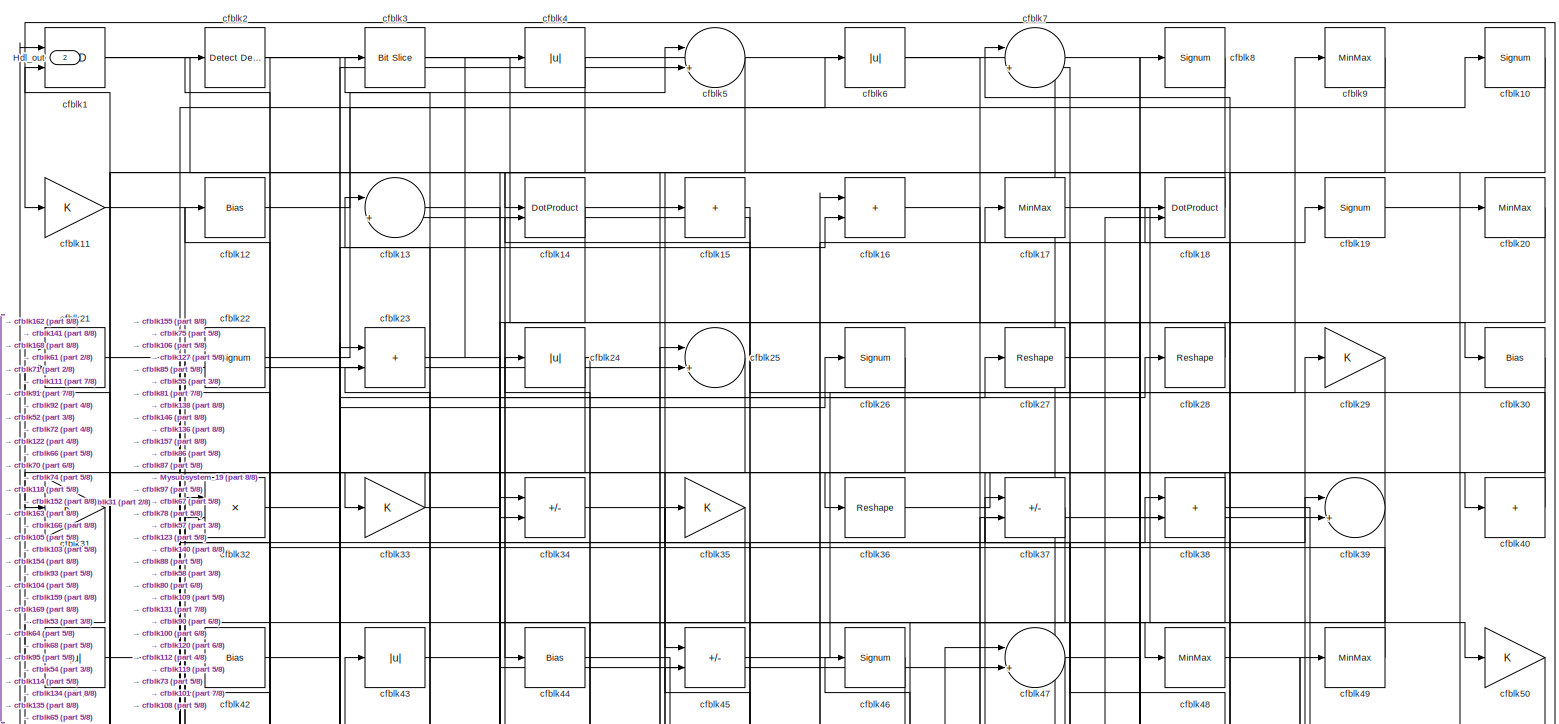
[diagram: root canvas - part 1/8, full width, top band]
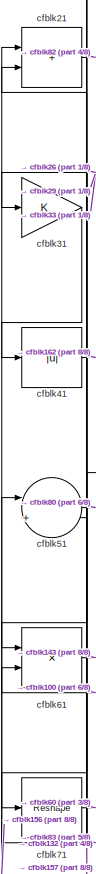
[diagram: root canvas - part 2/8, top left region]
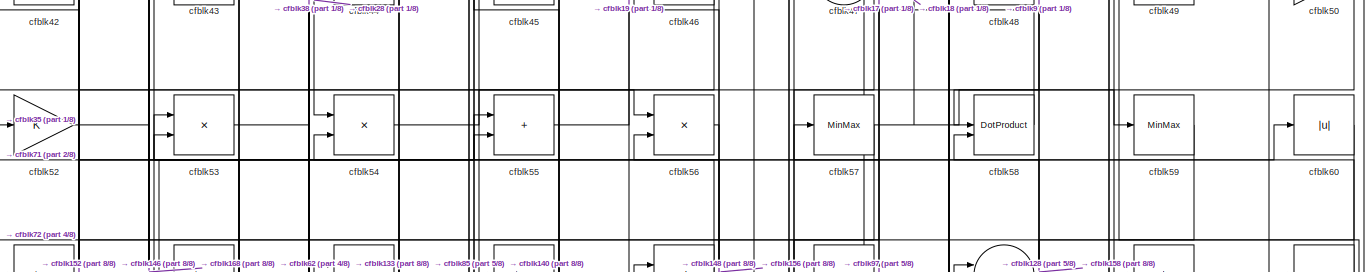
[diagram: root canvas - part 3/8, full width, top band]
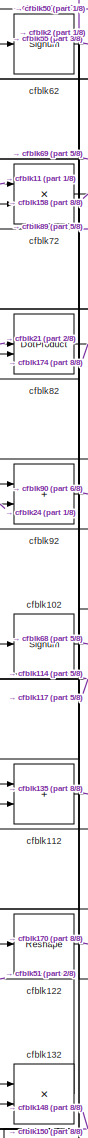
[diagram: root canvas - part 4/8, middle left region]
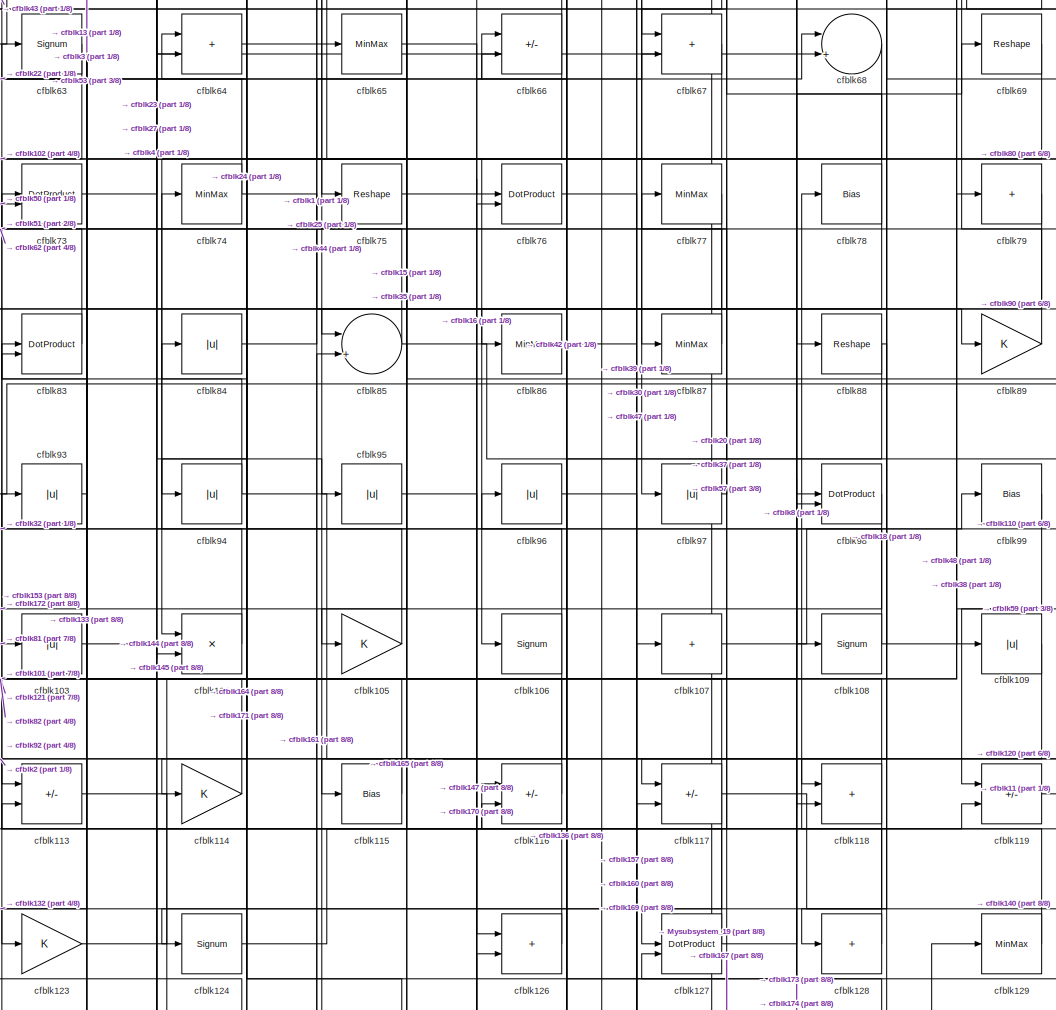
[diagram: root canvas - part 5/8, central region]
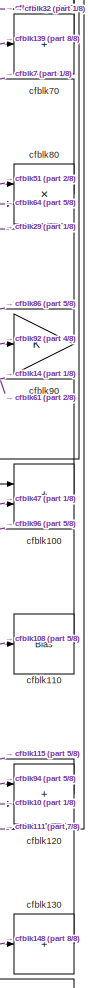
[diagram: root canvas - part 6/8, middle right region]
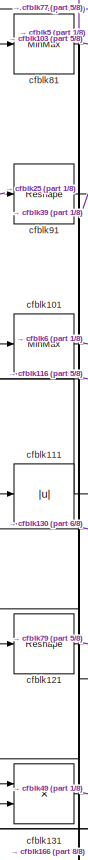
[diagram: root canvas - part 7/8, middle left region]
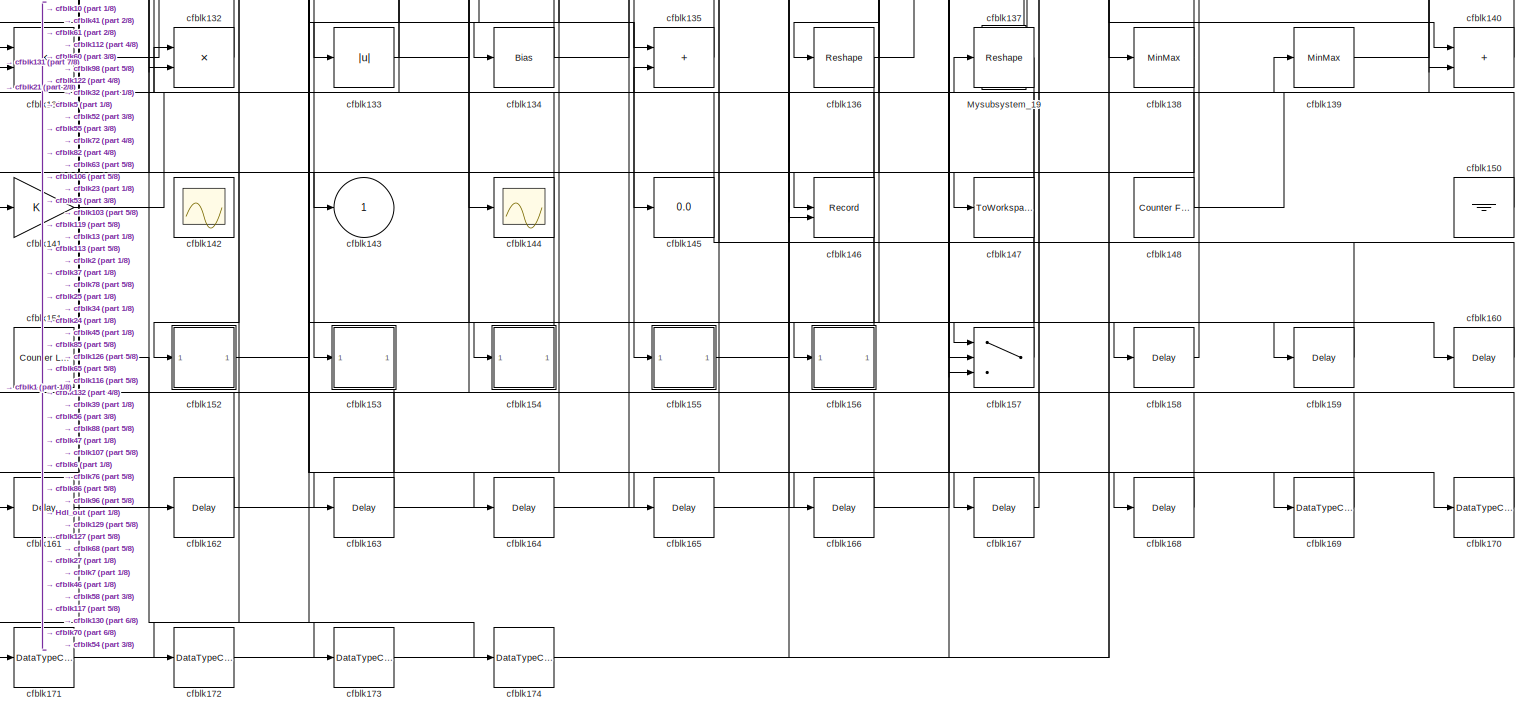
[diagram: root canvas - part 8/8, full width, bottom band]
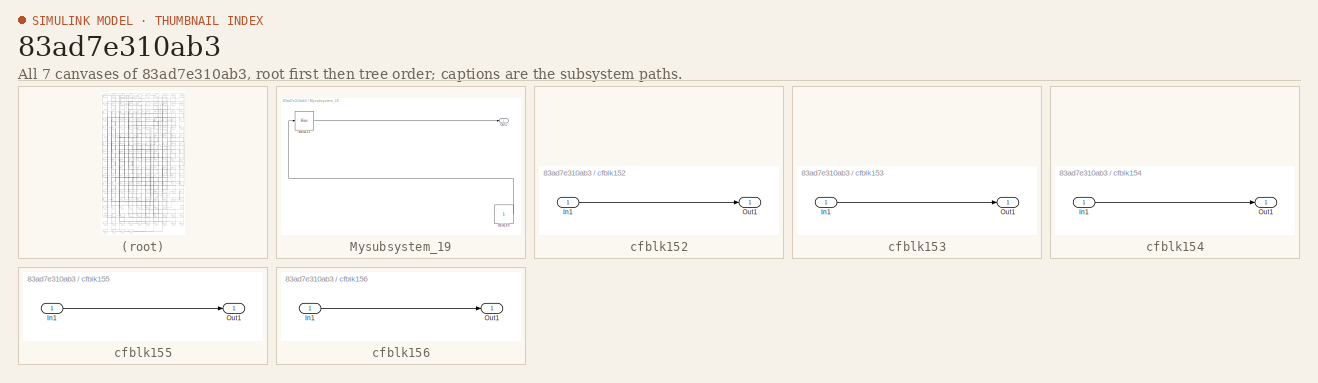
[diagram: thumbnail index - all 7 canvases of the model, root first then tree order]
MODEL slx_83ad7e310ab3
KIND model
CONFIG AbsTol = auto
CONFIG EnableMultiTasking = off
CONFIG FixedStep = auto
CONFIG MaxStep = auto
CONFIG MinStep = auto
CONFIG RelTol = 1e-3
CONFIG SampleTimeConstraint = Unconstrained
CONFIG SolverName = VariableStepAuto
CONFIG StartTime = 0.0
CONFIG StopTime = 10.0
BLOCK [Outport] Hdl_out
  OutDataTypeStr = uint8
  Port = 2
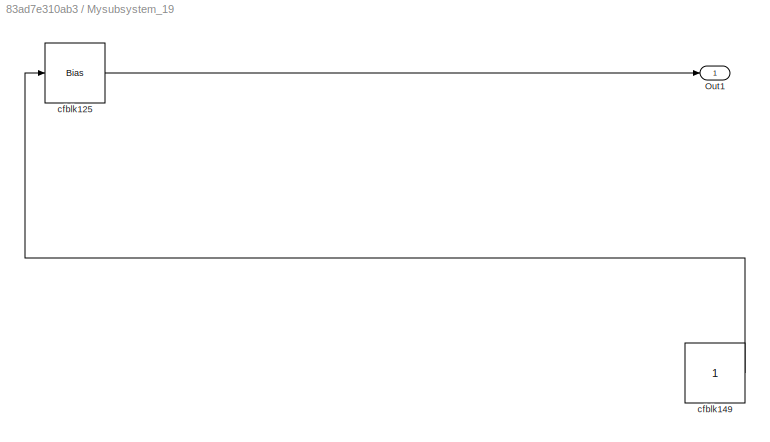
BLOCK [SubSystem] Mysubsystem_19
  RTWFcnName = Mysubsystem_19
  RTWFcnNameOpts = User specified
  RTWFileNameOpts = Use function name
  RTWSystemCode = Reusable function
  TreatAsAtomicUnit = on
BLOCK [Outport] Mysubsystem_19/Out1
BLOCK [Bias] Mysubsystem_19/cfblk125
  Bias = 0.0
  SaturateOnIntegerOverflow = off
BLOCK [Constant] Mysubsystem_19/cfblk149
  SampleTime = -1
BLOCK [Logic] cfblk1
  AllPortsSameDT = off
  OutDataTypeStr = boolean
BLOCK [Signum] cfblk10
BLOCK [Sum] cfblk100
  IconShape = rectangular
  OutDataTypeStr = uint8
BLOCK [MinMax] cfblk101
  OutDataTypeStr = uint8
BLOCK [Signum] cfblk102
BLOCK [Abs] cfblk103
  OutDataTypeStr = uint8
  SaturateOnIntegerOverflow = off
BLOCK [Product] cfblk104
  Inputs = */
  OutDataTypeStr = uint8
  RndMeth = Zero
  SaturateOnIntegerOverflow = on
BLOCK [Gain] cfblk105
  OutDataTypeStr = uint8
BLOCK [Signum] cfblk106
BLOCK [Sum] cfblk107
  IconShape = rectangular
  Inputs = +
  OutDataTypeStr = uint8
BLOCK [Signum] cfblk108
BLOCK [Abs] cfblk109
  OutDataTypeStr = uint8
  SaturateOnIntegerOverflow = off
BLOCK [Gain] cfblk11
  OutDataTypeStr = uint8
BLOCK [Bias] cfblk110
  Bias = 0.0
  SaturateOnIntegerOverflow = off
BLOCK [Abs] cfblk111
  OutDataTypeStr = uint8
  SaturateOnIntegerOverflow = off
BLOCK [Sum] cfblk112
  IconShape = rectangular
  OutDataTypeStr = uint8
BLOCK [Sum] cfblk113
  IconShape = rectangular
  Inputs = +-
  OutDataTypeStr = uint8
BLOCK [Gain] cfblk114
  OutDataTypeStr = uint8
BLOCK [Bias] cfblk115
  Bias = 0.0
  SaturateOnIntegerOverflow = off
BLOCK [Sum] cfblk116
  IconShape = rectangular
  Inputs = +-
  OutDataTypeStr = uint8
BLOCK [Sum] cfblk117
  IconShape = rectangular
  Inputs = +-
  OutDataTypeStr = uint8
BLOCK [Sum] cfblk118
  IconShape = rectangular
  OutDataTypeStr = uint8
BLOCK [Sum] cfblk119
  IconShape = rectangular
  Inputs = +-
  OutDataTypeStr = uint8
BLOCK [Bias] cfblk12
  Bias = 0.0
  SaturateOnIntegerOverflow = off
BLOCK [Sum] cfblk120
  IconShape = rectangular
  OutDataTypeStr = uint8
BLOCK [Reshape] cfblk121
BLOCK [Reshape] cfblk122
BLOCK [Gain] cfblk123
  OutDataTypeStr = uint8
BLOCK [Signum] cfblk124
BLOCK [Sum] cfblk126
  IconShape = rectangular
  OutDataTypeStr = uint8
BLOCK [DotProduct] cfblk127
  OutDataTypeStr = uint8
BLOCK [Sum] cfblk128
  IconShape = rectangular
  Inputs = +
  OutDataTypeStr = uint8
BLOCK [MinMax] cfblk129
  OutDataTypeStr = uint8
BLOCK [Sum] cfblk13
  Inputs = |++
  OutDataTypeStr = uint8
BLOCK [Sum] cfblk130
  IconShape = rectangular
  Inputs = +
  OutDataTypeStr = uint8
BLOCK [Product] cfblk131
  Inputs = */
  OutDataTypeStr = uint8
  RndMeth = Zero
  SaturateOnIntegerOverflow = on
BLOCK [Product] cfblk132
  Inputs = */
  OutDataTypeStr = uint8
  RndMeth = Zero
  SaturateOnIntegerOverflow = on
BLOCK [Abs] cfblk133
  OutDataTypeStr = uint8
  SaturateOnIntegerOverflow = off
BLOCK [Bias] cfblk134
  Bias = 0.0
  SaturateOnIntegerOverflow = off
BLOCK [Sum] cfblk135
  IconShape = rectangular
  OutDataTypeStr = uint8
BLOCK [Reshape] cfblk136
BLOCK [Reshape] cfblk137
BLOCK [MinMax] cfblk138
  OutDataTypeStr = uint8
BLOCK [MinMax] cfblk139
  OutDataTypeStr = uint8
BLOCK [DotProduct] cfblk14
  OutDataTypeStr = uint8
BLOCK [Sum] cfblk140
  IconShape = rectangular
  OutDataTypeStr = uint8
BLOCK [Gain] cfblk141
  OutDataTypeStr = uint8
BLOCK [Scope] cfblk142
  Floating = on
  NumInputPorts = 1
  ScopeSpecificationString = Simulink.scopes.TimeScopeBlockCfg('CurrentConfiguration', extmgr.ConfigurationSet(extmgr.Configuration('Core','General UI',true,'FigureColor',[0.156862745098039 0.156862745098039 0.156862745098039]),extmgr.Configuration('Core','Source UI',true),extmgr.Configuration('Sources','WiredSimulink',true,'DataLoggingVariableName','ScopeData1','DataLoggingSaveFormat','StructureWithTime','DataLoggingLimitDat...<+2713ch>
BLOCK [Outport] cfblk143
  OutDataTypeStr = uint8
  VectorParamsAs1DForOutWhenUnconnected = off
BLOCK [Scope] cfblk144
  Floating = off
  NumInputPorts = 1
  ScopeSpecificationString = Simulink.scopes.TimeScopeBlockCfg('CurrentConfiguration', extmgr.ConfigurationSet(extmgr.Configuration('Core','General UI',true),extmgr.Configuration('Core','Source UI',true),extmgr.Configuration('Sources','WiredSimulink',true,'DataLoggingVariableName','ScopeData2','DataLoggingSaveFormat','Array','DataLoggingLimitDataPoints',true,'DataLoggingDecimation','1'),extmgr.Configuration('Visuals','Time Do...<+868ch>
BLOCK [Display] cfblk145
  Decimation = 1
BLOCK [Record] cfblk146
  CompatibilityTag = XY
  FileSettingsInternal = {"entries":[{"content":{"excelSettings":{"content":{},"type":"Streamout.ExcelSettings"}},"type":"Streamout.FileSettingStorage","uuid":""}],"packageUris":["http:\/\/schema.mathworks.com\/mf0\/streamout_blocks\/R2020a"],"version":"1.0"}
  Layout = [1 1]
  SignalsInternal = {"entries":[{"content":{"signals":[{"content":{"blockPath":[],"dimensions":[1],"domain":"","lineColor":"#a2142f","plots":[1],"port":1,"signalID":61785,"signalName":"cfblk39"},"type":"RecordBlkView.Signal","uuid":""},{"content":{"blockPath":[],"dimensions":[1],"domain":"","lineColor":"#139fff","plots":[1],"port":2,"signalID":61788,"signalName":"cfblk52"},"type":"RecordBlkView.Signal","uuid":""}]},"...<+142ch>
  VisualizationBindings = {"xyplotplugin":{"info":[{"series":[{"bindingParametersList":[{"parameter":"X-Axis","signalID":61785,"signalName":"cfblk39"},{"parameter":"Y-Axis","signalID":61788,"signalName":"cfblk52"}],"seriesID":59693}],"subplotID":1}]}}
  st = -1
BLOCK [ToWorkspace] cfblk147
  MaxDataPoints = inf
  SampleTime = -1
  SaveFormat = Timeseries
  VariableName = simout
BLOCK [Reference] cfblk148  REF=hdlsllib/Sources/Counter
Free-Running
  SourceBlock = hdlsllib/Sources/Counter\nFree-Running
  SourceType = Counter Free-Running
BLOCK [Sum] cfblk15
  IconShape = rectangular
  Inputs = +
  OutDataTypeStr = uint8
BLOCK [Ground] cfblk150
BLOCK [Reference] cfblk151  REF=hdlsllib/Sources/Counter
Limited
  SourceBlock = hdlsllib/Sources/Counter\nLimited
  SourceType = Counter Limited
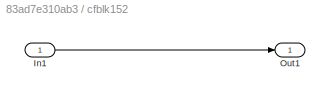
BLOCK [SubSystem] cfblk152
  LibrarySourceBlock = hdlsllib/Ports &\nSubsystems/Subsystem
BLOCK [Inport] cfblk152/In1
BLOCK [Outport] cfblk152/Out1
BLOCK [SubSystem] cfblk153
  LibrarySourceBlock = hdlsllib/Ports &\nSubsystems/Subsystem
BLOCK [Inport] cfblk153/In1
BLOCK [Outport] cfblk153/Out1
BLOCK [SubSystem] cfblk154
  LibrarySourceBlock = hdlsllib/Ports &\nSubsystems/Subsystem
BLOCK [Inport] cfblk154/In1
BLOCK [Outport] cfblk154/Out1
BLOCK [SubSystem] cfblk155
  LibrarySourceBlock = hdlsllib/Ports &\nSubsystems/Subsystem
BLOCK [Inport] cfblk155/In1
BLOCK [Outport] cfblk155/Out1
BLOCK [SubSystem] cfblk156
  LibrarySourceBlock = hdlsllib/Ports &\nSubsystems/Subsystem
BLOCK [Inport] cfblk156/In1
BLOCK [Outport] cfblk156/Out1
BLOCK [Switch] cfblk157
  InputSameDT = off
  OutDataTypeStr = uint8
  SaturateOnIntegerOverflow = off
BLOCK [Delay] cfblk158
  InputPortMap = u0
  SampleTime = 1
BLOCK [Delay] cfblk159
  InputPortMap = u0
  SampleTime = 1
BLOCK [Sum] cfblk16
  IconShape = rectangular
  OutDataTypeStr = uint8
BLOCK [Delay] cfblk160
  InputPortMap = u0
  SampleTime = 1
BLOCK [Delay] cfblk161
  InputPortMap = u0
  SampleTime = 1
BLOCK [Delay] cfblk162
  InputPortMap = u0
  SampleTime = 1
BLOCK [Delay] cfblk163
  InputPortMap = u0
  SampleTime = 1
BLOCK [Delay] cfblk164
  InputPortMap = u0
  SampleTime = 1
BLOCK [Delay] cfblk165
  InputPortMap = u0
  SampleTime = 1
BLOCK [Delay] cfblk166
  InputPortMap = u0
  SampleTime = 1
BLOCK [Delay] cfblk167
  InputPortMap = u0
  SampleTime = 1
BLOCK [Delay] cfblk168
  InputPortMap = u0
  SampleTime = 1
BLOCK [DataTypeConversion] cfblk169
  OutDataTypeStr = uint8
  RndMeth = Floor
  SaturateOnIntegerOverflow = off
BLOCK [MinMax] cfblk17
  OutDataTypeStr = uint8
BLOCK [DataTypeConversion] cfblk170
  OutDataTypeStr = uint8
  RndMeth = Floor
  SaturateOnIntegerOverflow = off
BLOCK [DataTypeConversion] cfblk171
  OutDataTypeStr = uint8
  RndMeth = Floor
  SaturateOnIntegerOverflow = off
BLOCK [DataTypeConversion] cfblk172
  OutDataTypeStr = uint8
  RndMeth = Floor
  SaturateOnIntegerOverflow = off
BLOCK [DataTypeConversion] cfblk173
  OutDataTypeStr = uint8
  RndMeth = Floor
  SaturateOnIntegerOverflow = off
BLOCK [DataTypeConversion] cfblk174
  OutDataTypeStr = uint8
  RndMeth = Floor
  SaturateOnIntegerOverflow = off
BLOCK [DotProduct] cfblk18
  OutDataTypeStr = uint8
BLOCK [Signum] cfblk19
BLOCK [Reference] cfblk2  REF=simulink/Logic and Bit
Operations/Detect
Decrease
  LibrarySourceBlock = hdlsllib/Logic and Bit\nOperations/Detect\nDecrease
  SourceBlock = simulink/Logic and Bit\nOperations/Detect\nDecrease
  SourceType = Detect Decrease
BLOCK [MinMax] cfblk20
  OutDataTypeStr = uint8
BLOCK [Sum] cfblk21
  IconShape = rectangular
  OutDataTypeStr = uint8
BLOCK [Signum] cfblk22
BLOCK [Sum] cfblk23
  IconShape = rectangular
  OutDataTypeStr = uint8
BLOCK [Abs] cfblk24
  OutDataTypeStr = uint8
  SaturateOnIntegerOverflow = off
BLOCK [Sum] cfblk25
  Inputs = |++
  OutDataTypeStr = uint8
BLOCK [Signum] cfblk26
BLOCK [Reshape] cfblk27
BLOCK [Reshape] cfblk28
BLOCK [Gain] cfblk29
  OutDataTypeStr = uint8
BLOCK [Reference] cfblk3  REF=hdlsllib/Logic and Bit
Operations/Bit Slice
  SourceBlock = hdlsllib/Logic and Bit\nOperations/Bit Slice
  SourceType = Bit Slice
BLOCK [Bias] cfblk30
  Bias = 0.0
  SaturateOnIntegerOverflow = off
BLOCK [Gain] cfblk31
  OutDataTypeStr = uint8
BLOCK [Product] cfblk32
  Inputs = */
  OutDataTypeStr = uint8
  RndMeth = Zero
  SaturateOnIntegerOverflow = on
BLOCK [Gain] cfblk33
  OutDataTypeStr = uint8
BLOCK [Sum] cfblk34
  IconShape = rectangular
  Inputs = +-
  OutDataTypeStr = uint8
BLOCK [Gain] cfblk35
  OutDataTypeStr = uint8
BLOCK [Reshape] cfblk36
BLOCK [Sum] cfblk37
  IconShape = rectangular
  Inputs = +-
  OutDataTypeStr = uint8
BLOCK [Sum] cfblk38
  IconShape = rectangular
  OutDataTypeStr = uint8
BLOCK [Sum] cfblk39
  Inputs = |++
  OutDataTypeStr = uint8
BLOCK [Abs] cfblk4
  OutDataTypeStr = uint8
  SaturateOnIntegerOverflow = off
BLOCK [Sum] cfblk40
  IconShape = rectangular
  Inputs = +
  OutDataTypeStr = uint8
BLOCK [Abs] cfblk41
  OutDataTypeStr = uint8
  SaturateOnIntegerOverflow = off
BLOCK [Bias] cfblk42
  Bias = 0.0
  SaturateOnIntegerOverflow = off
BLOCK [Abs] cfblk43
  OutDataTypeStr = uint8
  SaturateOnIntegerOverflow = off
BLOCK [Bias] cfblk44
  Bias = 0.0
  SaturateOnIntegerOverflow = off
BLOCK [Sum] cfblk45
  IconShape = rectangular
  Inputs = +-
  OutDataTypeStr = uint8
BLOCK [Signum] cfblk46
BLOCK [Sum] cfblk47
  Inputs = |++
  OutDataTypeStr = uint8
BLOCK [MinMax] cfblk48
  OutDataTypeStr = uint8
BLOCK [MinMax] cfblk49
  OutDataTypeStr = uint8
BLOCK [Sum] cfblk5
  Inputs = |++
  OutDataTypeStr = uint8
BLOCK [Gain] cfblk50
  OutDataTypeStr = uint8
BLOCK [Sum] cfblk51
  Inputs = |++
  OutDataTypeStr = uint8
BLOCK [Gain] cfblk52
  OutDataTypeStr = uint8
BLOCK [Product] cfblk53
  Inputs = */
  OutDataTypeStr = uint8
  RndMeth = Zero
  SaturateOnIntegerOverflow = on
BLOCK [Product] cfblk54
  Inputs = */
  OutDataTypeStr = uint8
  RndMeth = Zero
  SaturateOnIntegerOverflow = on
BLOCK [Sum] cfblk55
  IconShape = rectangular
  OutDataTypeStr = uint8
BLOCK [Product] cfblk56
  Inputs = */
  OutDataTypeStr = uint8
  RndMeth = Zero
  SaturateOnIntegerOverflow = on
BLOCK [MinMax] cfblk57
  OutDataTypeStr = uint8
BLOCK [DotProduct] cfblk58
  OutDataTypeStr = uint8
BLOCK [MinMax] cfblk59
  OutDataTypeStr = uint8
BLOCK [Abs] cfblk6
  OutDataTypeStr = uint8
  SaturateOnIntegerOverflow = off
BLOCK [Abs] cfblk60
  OutDataTypeStr = uint8
  SaturateOnIntegerOverflow = off
BLOCK [Product] cfblk61
  Inputs = */
  OutDataTypeStr = uint8
  RndMeth = Zero
  SaturateOnIntegerOverflow = on
BLOCK [Signum] cfblk62
BLOCK [Signum] cfblk63
BLOCK [Sum] cfblk64
  IconShape = rectangular
  OutDataTypeStr = uint8
BLOCK [MinMax] cfblk65
  OutDataTypeStr = uint8
BLOCK [Sum] cfblk66
  IconShape = rectangular
  Inputs = +-
  OutDataTypeStr = uint8
BLOCK [Sum] cfblk67
  IconShape = rectangular
  OutDataTypeStr = uint8
BLOCK [Sum] cfblk68
  Inputs = |++
  OutDataTypeStr = uint8
BLOCK [Reshape] cfblk69
BLOCK [Sum] cfblk7
  Inputs = |++
  OutDataTypeStr = uint8
BLOCK [Sum] cfblk70
  IconShape = rectangular
  Inputs = +
  OutDataTypeStr = uint8
BLOCK [Reshape] cfblk71
BLOCK [Product] cfblk72
  Inputs = */
  OutDataTypeStr = uint8
  RndMeth = Zero
  SaturateOnIntegerOverflow = on
BLOCK [DotProduct] cfblk73
  OutDataTypeStr = uint8
BLOCK [MinMax] cfblk74
  OutDataTypeStr = uint8
BLOCK [Reshape] cfblk75
BLOCK [DotProduct] cfblk76
  OutDataTypeStr = uint8
BLOCK [MinMax] cfblk77
  OutDataTypeStr = uint8
BLOCK [Bias] cfblk78
  Bias = 0.0
  SaturateOnIntegerOverflow = off
BLOCK [Sum] cfblk79
  IconShape = rectangular
  Inputs = +
  OutDataTypeStr = uint8
BLOCK [Signum] cfblk8
BLOCK [Product] cfblk80
  Inputs = */
  OutDataTypeStr = uint8
  RndMeth = Zero
  SaturateOnIntegerOverflow = on
BLOCK [MinMax] cfblk81
  OutDataTypeStr = uint8
BLOCK [DotProduct] cfblk82
  OutDataTypeStr = uint8
BLOCK [DotProduct] cfblk83
  OutDataTypeStr = uint8
BLOCK [Abs] cfblk84
  OutDataTypeStr = uint8
  SaturateOnIntegerOverflow = off
BLOCK [Sum] cfblk85
  Inputs = |++
  OutDataTypeStr = uint8
BLOCK [MinMax] cfblk86
  OutDataTypeStr = uint8
BLOCK [MinMax] cfblk87
  OutDataTypeStr = uint8
BLOCK [Reshape] cfblk88
BLOCK [Gain] cfblk89
  OutDataTypeStr = uint8
BLOCK [MinMax] cfblk9
  OutDataTypeStr = uint8
BLOCK [Gain] cfblk90
  OutDataTypeStr = uint8
BLOCK [Reshape] cfblk91
BLOCK [Sum] cfblk92
  IconShape = rectangular
  OutDataTypeStr = uint8
BLOCK [Abs] cfblk93
  OutDataTypeStr = uint8
  SaturateOnIntegerOverflow = off
BLOCK [Abs] cfblk94
  OutDataTypeStr = uint8
  SaturateOnIntegerOverflow = off
BLOCK [Abs] cfblk95
  OutDataTypeStr = uint8
  SaturateOnIntegerOverflow = off
BLOCK [Abs] cfblk96
  OutDataTypeStr = uint8
  SaturateOnIntegerOverflow = off
BLOCK [Abs] cfblk97
  OutDataTypeStr = uint8
  SaturateOnIntegerOverflow = off
BLOCK [DotProduct] cfblk98
  OutDataTypeStr = uint8
BLOCK [Bias] cfblk99
  Bias = 0.0
  SaturateOnIntegerOverflow = off
LINE Mysubsystem_19/cfblk125:1 -> Mysubsystem_19/Out1:1
LINE Mysubsystem_19/cfblk149:1 -> Mysubsystem_19/cfblk125:1
NET Mysubsystem_19:1 -> Hdl_out:1, cfblk129:1
NET cfblk100:1 -> cfblk14:2, cfblk61:2
LINE cfblk101:1 -> cfblk6:1
LINE cfblk102:1 -> cfblk68:1
NET cfblk103:1 -> cfblk13:1, cfblk144:1
LINE cfblk104:1 -> cfblk74:1
LINE cfblk105:1 -> cfblk43:1
NET cfblk106:1 -> cfblk133:1, cfblk32:1
LINE cfblk107:1 -> cfblk99:1
NET cfblk108:1 -> cfblk110:1, cfblk18:1, cfblk64:1
LINE cfblk109:1 -> cfblk117:1
NET cfblk10:1 -> cfblk120:2, cfblk141:1
LINE cfblk110:1 -> cfblk96:1
NET cfblk111:1 -> cfblk25:2, cfblk91:1
LINE cfblk112:1 -> cfblk135:1
LINE cfblk113:1 -> cfblk145:1
LINE cfblk114:1 -> cfblk92:1
LINE cfblk115:1 -> cfblk83:1
LINE cfblk116:1 -> cfblk101:1
NET cfblk117:1 -> cfblk127:1, cfblk132:2, cfblk140:2, cfblk82:2
NET cfblk118:1 -> cfblk124:1, cfblk83:2
LINE cfblk119:1 -> cfblk11:1
LINE cfblk11:1 -> cfblk72:1
LINE cfblk120:1 -> cfblk115:1
LINE cfblk121:1 -> cfblk79:1
LINE cfblk122:1 -> cfblk170:1
LINE cfblk123:1 -> cfblk8:1
LINE cfblk124:1 -> cfblk116:1
NET cfblk126:1 -> cfblk113:2, cfblk84:1
NET cfblk127:1 -> cfblk35:1, cfblk69:1, cfblk93:1
LINE cfblk128:1 -> cfblk78:1
NET cfblk129:1 -> cfblk66:2, cfblk77:1
LINE cfblk12:1 -> cfblk10:1
LINE cfblk130:1 -> cfblk111:1
LINE cfblk131:1 -> cfblk49:1
LINE cfblk132:1 -> cfblk51:2
NET cfblk133:1 -> cfblk119:2, cfblk53:1
NET cfblk134:1 -> cfblk25:1, cfblk2:1
LINE cfblk135:1 -> cfblk24:1
NET cfblk136:1 -> cfblk116:2, cfblk154:1, cfblk47:1
LINE cfblk137:1 -> cfblk157:1
NET cfblk138:1 -> cfblk161:1, cfblk46:1
LINE cfblk139:1 -> cfblk70:1
LINE cfblk13:1 -> cfblk159:1
LINE cfblk140:1 -> cfblk54:2
LINE cfblk141:1 -> cfblk139:1
NET cfblk148:1 -> cfblk130:1, cfblk132:1, cfblk56:2
NET cfblk14:1 -> cfblk34:2, cfblk45:1
LINE cfblk150:1 -> cfblk112:2
LINE cfblk151:1 -> cfblk173:1
LINE cfblk152/In1:1 -> cfblk152/Out1:1
NET cfblk152:1 -> cfblk55:2, cfblk5:2
LINE cfblk153/In1:1 -> cfblk153/Out1:1
LINE cfblk153:1 -> cfblk163:1
LINE cfblk154/In1:1 -> cfblk154/Out1:1
LINE cfblk154:1 -> cfblk23:2
LINE cfblk155/In1:1 -> cfblk155/Out1:1
LINE cfblk155:1 -> cfblk137:1
LINE cfblk156/In1:1 -> cfblk156/Out1:1
LINE cfblk156:1 -> cfblk21:1
LINE cfblk157:1 -> cfblk21:2
LINE cfblk158:1 -> cfblk58:2
LINE cfblk159:1 -> cfblk45:2
LINE cfblk15:1 -> cfblk85:1
LINE cfblk160:1 -> cfblk135:2
LINE cfblk161:1 -> cfblk85:2
LINE cfblk162:1 -> cfblk1:1
LINE cfblk163:1 -> cfblk23:1
LINE cfblk164:1 -> cfblk126:2
LINE cfblk165:1 -> cfblk117:2
LINE cfblk166:1 -> cfblk131:2
LINE cfblk167:1 -> cfblk127:2
LINE cfblk168:1 -> cfblk1:2
LINE cfblk169:1 -> cfblk34:1
LINE cfblk16:1 -> cfblk30:1
LINE cfblk170:1 -> cfblk76:1
LINE cfblk171:1 -> cfblk76:2
LINE cfblk172:1 -> cfblk107:1
LINE cfblk173:1 -> cfblk98:1
LINE cfblk174:1 -> cfblk98:2
LINE cfblk17:1 -> cfblk50:1
LINE cfblk18:1 -> cfblk14:1
LINE cfblk19:1 -> cfblk20:1
LINE cfblk1:1 -> cfblk65:1
LINE cfblk20:1 -> cfblk67:1
LINE cfblk21:1 -> cfblk82:1
LINE cfblk22:1 -> cfblk5:1
NET cfblk23:1 -> cfblk4:1, cfblk68:2, cfblk95:1
NET cfblk24:1 -> cfblk114:1, cfblk92:2
LINE cfblk25:1 -> cfblk75:1
LINE cfblk26:1 -> cfblk71:1
LINE cfblk27:1 -> cfblk138:1
LINE cfblk28:1 -> cfblk54:1
LINE cfblk29:1 -> cfblk61:1
NET cfblk2:1 -> cfblk118:2, cfblk122:1
LINE cfblk30:1 -> cfblk87:1
LINE cfblk31:1 -> cfblk41:1
LINE cfblk32:1 -> cfblk166:1
NET cfblk33:1 -> cfblk31:1, cfblk47:2
LINE cfblk34:1 -> cfblk155:1
LINE cfblk35:1 -> cfblk52:1
LINE cfblk36:1 -> cfblk40:1
LINE cfblk37:1 -> cfblk134:1
NET cfblk38:1 -> cfblk100:1, cfblk33:1, cfblk64:2
NET cfblk39:1 -> cfblk146:1, cfblk36:1
LINE cfblk3:1 -> cfblk88:1
NET cfblk40:1 -> cfblk13:2, cfblk7:2
LINE cfblk41:1 -> cfblk162:1
NET cfblk42:1 -> cfblk16:2, cfblk26:1
LINE cfblk43:1 -> cfblk48:1
LINE cfblk44:1 -> cfblk106:1
LINE cfblk45:1 -> cfblk9:1
LINE cfblk46:1 -> cfblk81:1
NET cfblk47:1 -> cfblk100:2, cfblk97:1
LINE cfblk48:1 -> cfblk109:1
LINE cfblk49:1 -> cfblk12:1
NET cfblk4:1 -> cfblk104:2, cfblk44:1
NET cfblk50:1 -> cfblk112:1, cfblk73:2
LINE cfblk51:1 -> cfblk80:1
NET cfblk52:1 -> cfblk146:2, cfblk168:1, cfblk28:1
LINE cfblk53:1 -> cfblk38:1
LINE cfblk54:1 -> cfblk56:1
LINE cfblk55:1 -> cfblk19:1
LINE cfblk56:1 -> cfblk156:1
NET cfblk57:1 -> cfblk18:2, cfblk59:1, cfblk72:2
LINE cfblk58:1 -> cfblk17:1
LINE cfblk59:1 -> cfblk128:1
LINE cfblk5:1 -> cfblk131:1
LINE cfblk60:1 -> cfblk152:1
LINE cfblk61:1 -> cfblk143:1
LINE cfblk62:1 -> cfblk55:1
LINE cfblk63:1 -> cfblk153:1
LINE cfblk64:1 -> cfblk80:2
NET cfblk65:1 -> cfblk105:1, cfblk147:1
NET cfblk66:1 -> cfblk123:1, cfblk42:1
LINE cfblk67:1 -> cfblk94:1
NET cfblk68:1 -> cfblk104:1, cfblk167:1
LINE cfblk69:1 -> cfblk102:1
LINE cfblk6:1 -> cfblk157:2
LINE cfblk70:1 -> cfblk32:2
LINE cfblk71:1 -> cfblk60:1
LINE cfblk72:1 -> cfblk158:1
LINE cfblk73:1 -> cfblk27:1
NET cfblk74:1 -> cfblk22:1, cfblk89:1
NET cfblk75:1 -> cfblk16:1, cfblk67:2
LINE cfblk76:1 -> cfblk169:1
LINE cfblk77:1 -> cfblk121:1
NET cfblk78:1 -> cfblk164:1, cfblk171:1, cfblk37:2
LINE cfblk79:1 -> cfblk113:1
LINE cfblk7:1 -> cfblk140:1
LINE cfblk80:1 -> cfblk7:1
LINE cfblk81:1 -> cfblk103:1
LINE cfblk82:1 -> cfblk174:1
LINE cfblk83:1 -> cfblk51:1
LINE cfblk84:1 -> cfblk66:1
NET cfblk85:1 -> cfblk108:1, cfblk165:1, cfblk53:2
NET cfblk86:1 -> cfblk160:1, cfblk39:2
LINE cfblk87:1 -> cfblk73:1
NET cfblk88:1 -> cfblk118:1, cfblk136:1
LINE cfblk89:1 -> cfblk62:1
NET cfblk8:1 -> cfblk15:1, cfblk38:2
NET cfblk90:1 -> cfblk29:1, cfblk86:1
LINE cfblk91:1 -> cfblk39:1
LINE cfblk92:1 -> cfblk90:1
LINE cfblk93:1 -> cfblk3:1
NET cfblk94:1 -> cfblk120:1, cfblk63:1
LINE cfblk95:1 -> cfblk126:1
LINE cfblk96:1 -> cfblk157:3
NET cfblk97:1 -> cfblk37:1, cfblk57:1
LINE cfblk98:1 -> cfblk172:1
LINE cfblk99:1 -> cfblk119:1
LINE cfblk9:1 -> cfblk58:1
note: NET lines group one-source signal fan-out (src -> all destinations, sorted); 1:1 wires keep LINE
